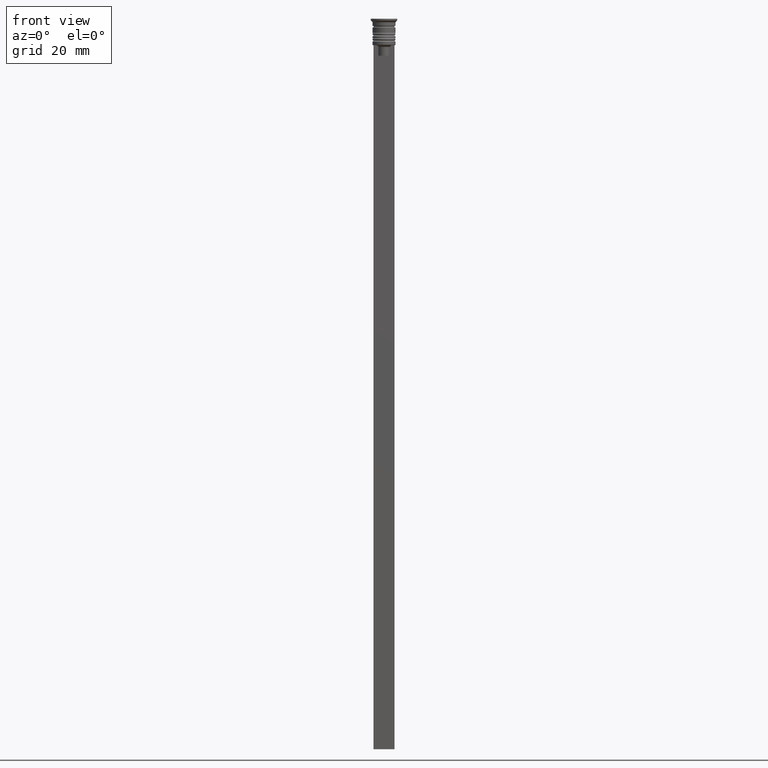
[diagram: clean part render]
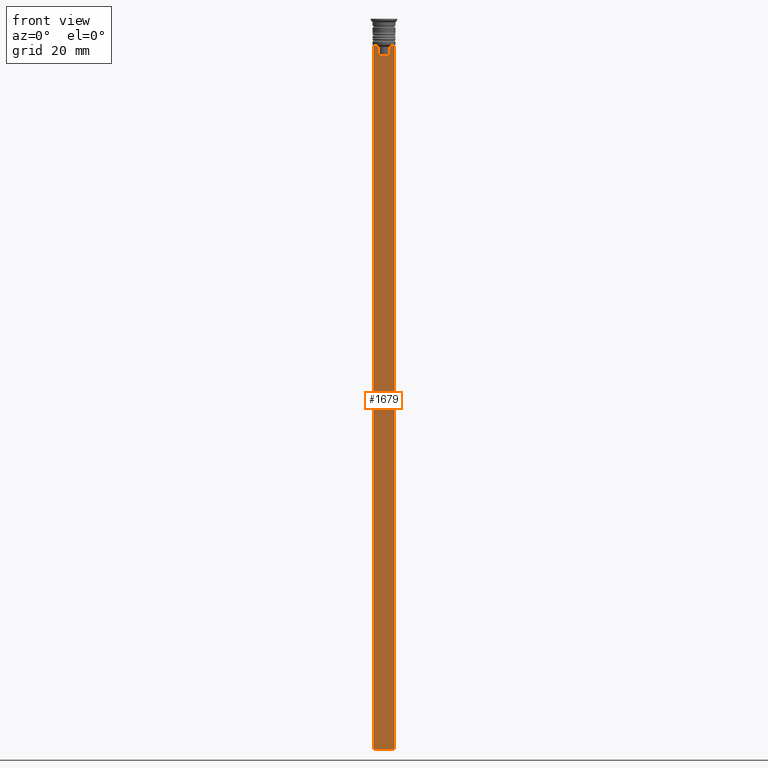
[diagram: same view with one face highlighted and labeled with its STEP entity id]
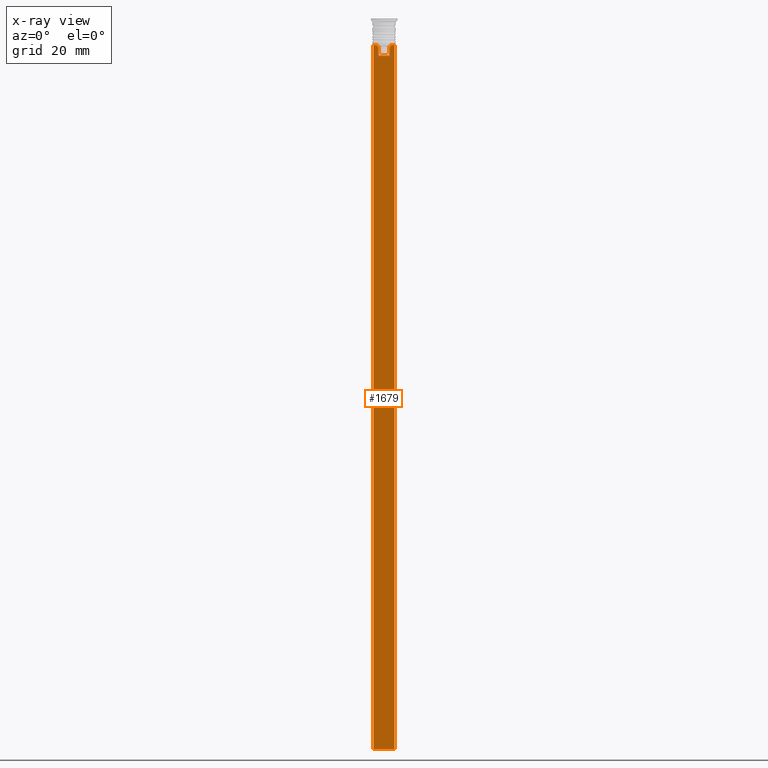
[diagram: x-ray of the same camera — body ghosted, the highlighted face saturated]
A machine part, front view. The second image highlights one B-rep face of the part: STEP entity #1679.
The next image is the same camera in x-ray: the body ghosted, the highlighted face saturated — about 0% of this face is hidden behind the body in this view.
In plain terms, the highlighted planar face has unit normal (0, -1, -0).
Its self-contained STEP definition (entity closure, byte-faithful):
#19 = CARTESIAN_POINT ( 'NONE',  ( 1.612451549659713601, -0.3500000000000000333, -8.000000000000000000 ) ) ;
#88 = LINE ( 'NONE', #1234, #954 ) ;
#95 = CARTESIAN_POINT ( 'NONE',  ( -3.000000000000004441, -0.3500000000000000333, -1.459304675784417915 ) ) ;
#112 = ORIENTED_EDGE ( 'NONE', *, *, #698, .F. ) ;
#115 = EDGE_CURVE ( 'NONE', #1355, #1054, #767, .T. ) ;
#120 = CARTESIAN_POINT ( 'NONE',  ( 1.952040775369266346, -0.3500000000000000333, -7.667021484535463394 ) ) ;
#130 = LINE ( 'NONE', #806, #1649 ) ;
#158 = CARTESIAN_POINT ( 'NONE',  ( -1.782527878033862478, -0.3500000000000000333, -7.833794036819864637 ) ) ;
#172 = CARTESIAN_POINT ( 'NONE',  ( -2.121320343559647270, -0.3500000000000000333, -7.500000000000000000 ) ) ;
#254 = CARTESIAN_POINT ( 'NONE',  ( -3.000000000000004441, -0.3500000000000000333, -207.5000000000000284 ) ) ;
#275 = VECTOR ( 'NONE', #1263, 1000.000000000000000 ) ;
#283 = CARTESIAN_POINT ( 'NONE',  ( -1.612451549659713601, -0.3500000000000000333, -8.000000000000000000 ) ) ;
#292 = CARTESIAN_POINT ( 'NONE',  ( 2.999999999999995559, -0.3500000000000000333, -7.500000000000000000 ) ) ;
#327 = VERTEX_POINT ( 'NONE', #172 ) ;
#367 = EDGE_LOOP ( 'NONE', ( #2115, #2139, #511, #1073, #771, #1689, #1629, #1435, #112, #1854 ) ) ;
#408 = EDGE_CURVE ( 'NONE', #1297, #327, #1316, .T. ) ;
#417 = VECTOR ( 'NONE', #448, 1000.000000000000000 ) ;
#435 = VERTEX_POINT ( 'NONE', #283 ) ;
#448 = DIRECTION ( 'NONE',  ( 0.000000000000000000, 0.000000000000000000, -1.000000000000000000 ) ) ;
#474 = VECTOR ( 'NONE', #1335, 1000.000000000000000 ) ;
#481 = LINE ( 'NONE', #670, #1473 ) ;
#489 = CARTESIAN_POINT ( 'NONE',  ( 2.999999999999995559, -0.3500000000000000333, -1.459304675784417915 ) ) ;
#501 = VERTEX_POINT ( 'NONE', #693 ) ;
#511 = ORIENTED_EDGE ( 'NONE', *, *, #1457, .T. ) ;
#514 = CARTESIAN_POINT ( 'NONE',  ( 2.999999999999995559, -0.3500000000000000333, -7.500000000000000000 ) ) ;
#543 = CARTESIAN_POINT ( 'NONE',  ( 2.121320343559647270, -0.3500000000000000333, -7.500000000000000000 ) ) ;
#627 = AXIS2_PLACEMENT_3D ( 'NONE', #1857, #1224, #1196 ) ;
#639 = EDGE_CURVE ( 'NONE', #435, #925, #130, .T. ) ;
#656 = CARTESIAN_POINT ( 'NONE',  ( -1.952043732028444500, -0.3500000000000000333, -7.667018567316270961 ) ) ;
#670 = CARTESIAN_POINT ( 'NONE',  ( 0.000000000000000000, -0.3500000000000000333, -10.49999999999999822 ) ) ;
#687 = CARTESIAN_POINT ( 'NONE',  ( 2.999999999999995559, -0.3500000000000000333, -207.5000000000000284 ) ) ;
#693 = CARTESIAN_POINT ( 'NONE',  ( 2.999999999999995559, -0.3500000000000000333, -7.500000000000000000 ) ) ;
#698 = EDGE_CURVE ( 'NONE', #925, #1767, #481, .T. ) ;
#767 = B_SPLINE_CURVE_WITH_KNOTS ( 'NONE', 3,
 ( #1492, #1945, #120, #543 ),
 .UNSPECIFIED., .F., .F.,
 ( 4, 4 ),
 ( 0.008600796474521228696, 0.009317962624906526645 ),
 .UNSPECIFIED. ) ;
#771 = ORIENTED_EDGE ( 'NONE', *, *, #2008, .F. ) ;
#806 = CARTESIAN_POINT ( 'NONE',  ( -1.612451549659713601, -0.3500000000000000333, 0.000000000000000000 ) ) ;
#867 = CARTESIAN_POINT ( 'NONE',  ( 1.612451549659713601, -0.3500000000000000333, -10.49999999999999822 ) ) ;
#872 = CARTESIAN_POINT ( 'NONE',  ( -2.121320343559647270, -0.3500000000000000333, -7.500000000000000000 ) ) ;
#885 = VECTOR ( 'NONE', #1898, 1000.000000000000000 ) ;
#925 = VERTEX_POINT ( 'NONE', #1021 ) ;
#954 = VECTOR ( 'NONE', #1909, 1000.000000000000000 ) ;
#1021 = CARTESIAN_POINT ( 'NONE',  ( -1.612451549659713601, -0.3500000000000000333, -10.49999999999999822 ) ) ;
#1054 = VERTEX_POINT ( 'NONE', #1247 ) ;
#1072 = LINE ( 'NONE', #1170, #885 ) ;
#1073 = ORIENTED_EDGE ( 'NONE', *, *, #1309, .F. ) ;
#1091 = LINE ( 'NONE', #95, #275 ) ;
#1153 = B_SPLINE_CURVE_WITH_KNOTS ( 'NONE', 3,
 ( #872, #656, #158, #1405 ),
 .UNSPECIFIED., .F., .F.,
 ( 4, 4 ),
 ( 0.003684653461239337929, 0.004398058763641257696 ),
 .UNSPECIFIED. ) ;
#1170 = CARTESIAN_POINT ( 'NONE',  ( 2.999999999999995559, -0.3500000000000000333, -207.5000000000000284 ) ) ;
#1180 = FACE_OUTER_BOUND ( 'NONE', #367, .T. ) ;
#1196 = DIRECTION ( 'NONE',  ( 0.000000000000000000, 0.000000000000000000, -1.000000000000000000 ) ) ;
#1224 = DIRECTION ( 'NONE',  ( 0.000000000000000000, -1.000000000000000000, -0.000000000000000000 ) ) ;
#1234 = CARTESIAN_POINT ( 'NONE',  ( 1.612451549659713601, -0.3500000000000000333, 0.000000000000000000 ) ) ;
#1247 = CARTESIAN_POINT ( 'NONE',  ( 2.121320343559647270, -0.3500000000000000333, -7.500000000000000000 ) ) ;
#1263 = DIRECTION ( 'NONE',  ( 0.000000000000000000, 0.000000000000000000, -1.000000000000000000 ) ) ;
#1297 = VERTEX_POINT ( 'NONE', #2063 ) ;
#1303 = DIRECTION ( 'NONE',  ( 0.000000000000000000, 0.000000000000000000, -1.000000000000000000 ) ) ;
#1307 = EDGE_CURVE ( 'NONE', #327, #435, #1153, .T. ) ;
#1309 = EDGE_CURVE ( 'NONE', #2152, #1384, #1072, .T. ) ;
#1316 = LINE ( 'NONE', #514, #1952 ) ;
#1335 = DIRECTION ( 'NONE',  ( 1.000000000000000000, 0.000000000000000000, 0.000000000000000000 ) ) ;
#1355 = VERTEX_POINT ( 'NONE', #19 ) ;
#1359 = PLANE ( 'NONE',  #627 ) ;
#1384 = VERTEX_POINT ( 'NONE', #254 ) ;
#1405 = CARTESIAN_POINT ( 'NONE',  ( -1.612451549659713601, -0.3500000000000000333, -8.000000000000000000 ) ) ;
#1435 = ORIENTED_EDGE ( 'NONE', *, *, #1516, .F. ) ;
#1451 = LINE ( 'NONE', #489, #417 ) ;
#1457 = EDGE_CURVE ( 'NONE', #1297, #1384, #1091, .T. ) ;
#1473 = VECTOR ( 'NONE', #1682, 1000.000000000000000 ) ;
#1492 = CARTESIAN_POINT ( 'NONE',  ( 1.612451549659713601, -0.3500000000000000333, -8.000000000000000000 ) ) ;
#1516 = EDGE_CURVE ( 'NONE', #1767, #1355, #88, .T. ) ;
#1570 = EDGE_CURVE ( 'NONE', #1054, #501, #1835, .T. ) ;
#1629 = ORIENTED_EDGE ( 'NONE', *, *, #115, .F. ) ;
#1649 = VECTOR ( 'NONE', #1303, 1000.000000000000000 ) ;
#1679 = ADVANCED_FACE ( 'NONE', ( #1180 ), #1359, .T. ) ;
#1682 = DIRECTION ( 'NONE',  ( 1.000000000000000000, 0.000000000000000000, 0.000000000000000000 ) ) ;
#1689 = ORIENTED_EDGE ( 'NONE', *, *, #1570, .F. ) ;
#1767 = VERTEX_POINT ( 'NONE', #867 ) ;
#1835 = LINE ( 'NONE', #292, #474 ) ;
#1854 = ORIENTED_EDGE ( 'NONE', *, *, #639, .F. ) ;
#1857 = CARTESIAN_POINT ( 'NONE',  ( 2.999999999999995559, -0.3500000000000000333, -1.459304675784417915 ) ) ;
#1898 = DIRECTION ( 'NONE',  ( -1.000000000000000000, 0.000000000000000000, 0.000000000000000000 ) ) ;
#1909 = DIRECTION ( 'NONE',  ( -0.000000000000000000, -0.000000000000000000, 1.000000000000000000 ) ) ;
#1945 = CARTESIAN_POINT ( 'NONE',  ( 1.782523989086206795, -0.3500000000000000333, -7.833797837268088315 ) ) ;
#1952 = VECTOR ( 'NONE', #1997, 1000.000000000000000 ) ;
#1997 = DIRECTION ( 'NONE',  ( 1.000000000000000000, 0.000000000000000000, 0.000000000000000000 ) ) ;
#2008 = EDGE_CURVE ( 'NONE', #501, #2152, #1451, .T. ) ;
#2063 = CARTESIAN_POINT ( 'NONE',  ( -3.000000000000004441, -0.3500000000000000333, -7.500000000000000000 ) ) ;
#2115 = ORIENTED_EDGE ( 'NONE', *, *, #1307, .F. ) ;
#2139 = ORIENTED_EDGE ( 'NONE', *, *, #408, .F. ) ;
#2152 = VERTEX_POINT ( 'NONE', #687 ) ;